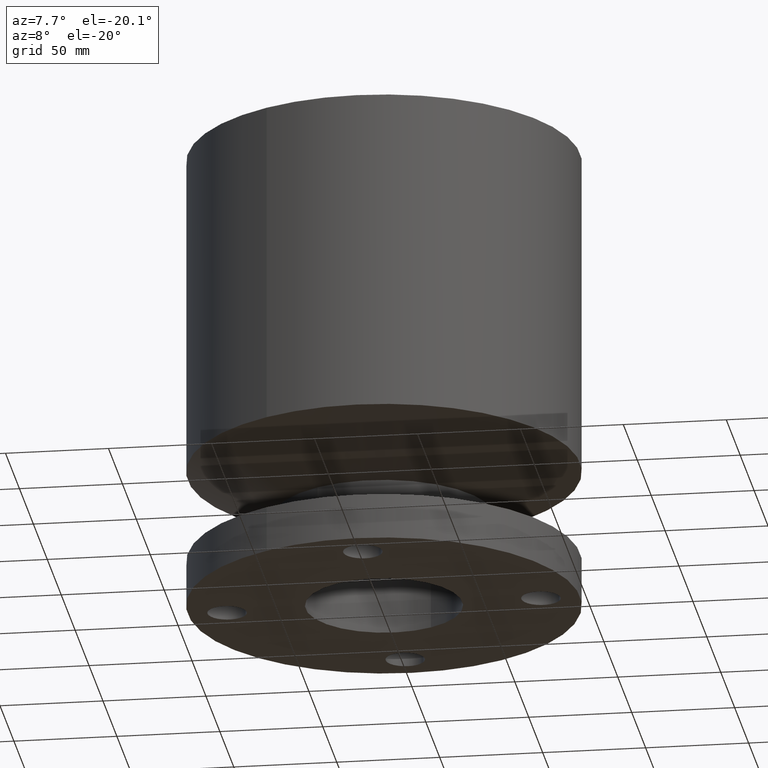
[diagram: clean part render]
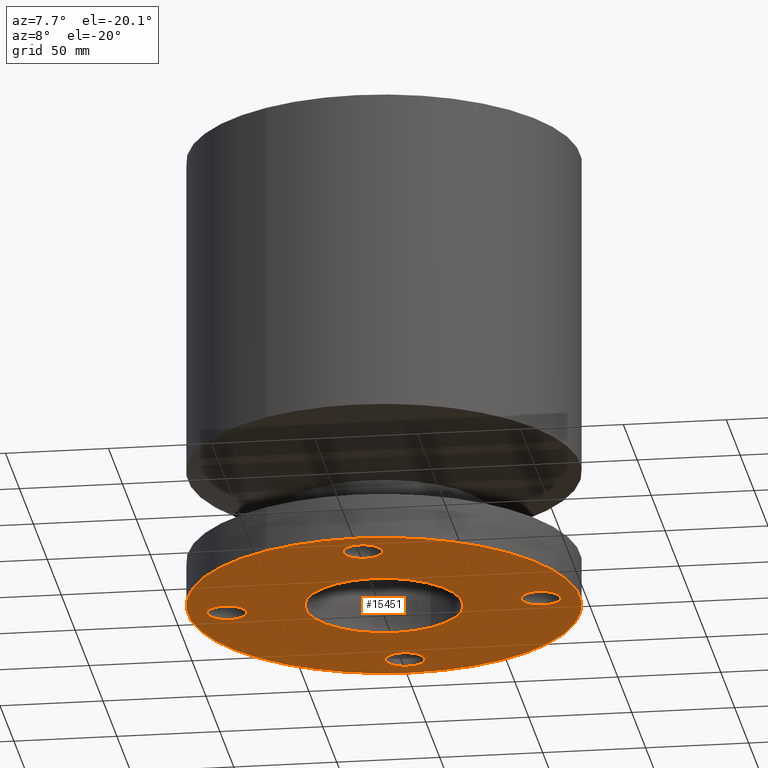
[diagram: same view with one face highlighted and labeled with its STEP entity id]
A machine part, auxiliary view. The second image highlights one B-rep face of the part: STEP entity #15451.
In plain terms, the highlighted planar face has unit normal (0, 0, 1).
Its self-contained STEP definition (entity closure, byte-faithful):
#51=AXIS2_PLACEMENT_3D('Circle Axis2P3D',#49,#50,$) ;
#200=AXIS2_PLACEMENT_3D('Circle Axis2P3D',#198,#199,$) ;
#217=AXIS2_PLACEMENT_3D('Circle Axis2P3D',#215,#216,$) ;
#243=AXIS2_PLACEMENT_3D('Circle Axis2P3D',#241,#242,$) ;
#310=AXIS2_PLACEMENT_3D('Circle Axis2P3D',#308,#309,$) ;
#329=AXIS2_PLACEMENT_3D('Circle Axis2P3D',#327,#328,$) ;
#353=AXIS2_PLACEMENT_3D('Circle Axis2P3D',#351,#352,$) ;
#372=AXIS2_PLACEMENT_3D('Circle Axis2P3D',#370,#371,$) ;
#396=AXIS2_PLACEMENT_3D('Circle Axis2P3D',#394,#395,$) ;
#415=AXIS2_PLACEMENT_3D('Circle Axis2P3D',#413,#414,$) ;
#15386=AXIS2_PLACEMENT_3D('Circle Axis2P3D',#15384,#15385,$) ;
#15412=AXIS2_PLACEMENT_3D('Circle Axis2P3D',#15410,#15411,$) ;
#15425=AXIS2_PLACEMENT_3D('Plane Axis2P3D',#15422,#15423,#15424) ;
#46=CARTESIAN_POINT('Vertex',(3.32909346072,0.179784576977,2.2401153548E-016)) ;
#49=CARTESIAN_POINT('Axis2P3D Location',(3.00000000001,0.,0.)) ;
#53=CARTESIAN_POINT('Vertex',(2.6709065393,-0.179784576977,2.2401153548E-016)) ;
#198=CARTESIAN_POINT('Axis2P3D Location',(3.00000000001,0.,0.)) ;
#215=CARTESIAN_POINT('Axis2P3D Location',(0.,0.,5.59482469102E-016)) ;
#219=CARTESIAN_POINT('Vertex',(-1.79784576977,-3.2909346071,1.1189649382E-015)) ;
#221=CARTESIAN_POINT('Vertex',(1.79784576977,3.2909346071,1.1189649382E-015)) ;
#241=CARTESIAN_POINT('Axis2P3D Location',(0.,0.,5.59482469102E-016)) ;
#305=CARTESIAN_POINT('Vertex',(0.179784576977,-3.32909346072,2.2401153548E-016)) ;
#308=CARTESIAN_POINT('Axis2P3D Location',(-3.7578544923E-016,-3.00000000001,0.)) ;
#312=CARTESIAN_POINT('Vertex',(-0.179784576977,-2.6709065393,2.2401153548E-016)) ;
#327=CARTESIAN_POINT('Axis2P3D Location',(-3.7578544923E-016,-3.00000000001,0.)) ;
#348=CARTESIAN_POINT('Vertex',(-3.32909346072,-0.179784576977,2.2401153548E-016)) ;
#351=CARTESIAN_POINT('Axis2P3D Location',(-3.00000000001,-3.67394039746E-016,0.)) ;
#355=CARTESIAN_POINT('Vertex',(-2.6709065393,0.179784576977,2.2401153548E-016)) ;
#370=CARTESIAN_POINT('Axis2P3D Location',(-3.00000000001,-3.67394039746E-016,0.)) ;
#391=CARTESIAN_POINT('Vertex',(-0.179784576977,3.32909346072,2.2401153548E-016)) ;
#394=CARTESIAN_POINT('Axis2P3D Location',(-5.51091059619E-016,3.00000000001,0.)) ;
#398=CARTESIAN_POINT('Vertex',(0.179784576977,2.6709065393,2.2401153548E-016)) ;
#413=CARTESIAN_POINT('Axis2P3D Location',(-5.51091059619E-016,3.00000000001,0.)) ;
#15384=CARTESIAN_POINT('Axis2P3D Location',(0.,0.,0.)) ;
#15388=CARTESIAN_POINT('Vertex',(-0.719138307909,-1.31637384284,0.)) ;
#15390=CARTESIAN_POINT('Vertex',(0.719138307909,1.31637384284,0.)) ;
#15410=CARTESIAN_POINT('Axis2P3D Location',(0.,0.,0.)) ;
#15422=CARTESIAN_POINT('Axis2P3D Location',(0.,0.,0.)) ;
#50=DIRECTION('Axis2P3D Direction',(0.,-0.,0.0393700787402)) ;
#199=DIRECTION('Axis2P3D Direction',(0.,-0.,0.0393700787402)) ;
#216=DIRECTION('Axis2P3D Direction',(0.,0.,-0.0393700787402)) ;
#242=DIRECTION('Axis2P3D Direction',(0.,0.,-0.0393700787402)) ;
#309=DIRECTION('Axis2P3D Direction',(-0.,0.,0.0393700787402)) ;
#328=DIRECTION('Axis2P3D Direction',(-0.,0.,0.0393700787402)) ;
#352=DIRECTION('Axis2P3D Direction',(0.,0.,0.0393700787402)) ;
#371=DIRECTION('Axis2P3D Direction',(0.,0.,0.0393700787402)) ;
#395=DIRECTION('Axis2P3D Direction',(0.,0.,0.0393700787402)) ;
#414=DIRECTION('Axis2P3D Direction',(0.,0.,0.0393700787402)) ;
#15385=DIRECTION('Axis2P3D Direction',(0.,0.,-0.0393700787402)) ;
#15411=DIRECTION('Axis2P3D Direction',(0.,0.,-0.0393700787402)) ;
#15423=DIRECTION('Axis2P3D Direction',(0.,0.,0.0393700787402)) ;
#15424=DIRECTION('Axis2P3D XDirection',(0.0393700787402,0.,0.)) ;
#15428=ORIENTED_EDGE('',*,*,#245,.T.) ;
#15429=ORIENTED_EDGE('',*,*,#223,.T.) ;
#15432=ORIENTED_EDGE('',*,*,#400,.F.) ;
#15433=ORIENTED_EDGE('',*,*,#417,.F.) ;
#15436=ORIENTED_EDGE('',*,*,#357,.F.) ;
#15437=ORIENTED_EDGE('',*,*,#374,.F.) ;
#15440=ORIENTED_EDGE('',*,*,#314,.F.) ;
#15441=ORIENTED_EDGE('',*,*,#331,.F.) ;
#15444=ORIENTED_EDGE('',*,*,#202,.F.) ;
#15445=ORIENTED_EDGE('',*,*,#55,.F.) ;
#15448=ORIENTED_EDGE('',*,*,#15414,.T.) ;
#15449=ORIENTED_EDGE('',*,*,#15392,.T.) ;
#15434=FACE_BOUND('',#15431,.T.) ;
#15438=FACE_BOUND('',#15435,.T.) ;
#15442=FACE_BOUND('',#15439,.T.) ;
#15446=FACE_BOUND('',#15443,.T.) ;
#15450=FACE_BOUND('',#15447,.T.) ;
#15451=ADVANCED_FACE('PartBody',(#15430,#15434,#15438,#15442,#15446,#15450),#15426,.F.) ;
#52=CIRCLE('generated circle',#51,0.375000000002) ;
#201=CIRCLE('generated circle',#200,0.375000000002) ;
#218=CIRCLE('generated circle',#217,3.75000000002) ;
#244=CIRCLE('generated circle',#243,3.75000000002) ;
#311=CIRCLE('generated circle',#310,0.375000000002) ;
#330=CIRCLE('generated circle',#329,0.375000000002) ;
#354=CIRCLE('generated circle',#353,0.375000000001) ;
#373=CIRCLE('generated circle',#372,0.375000000001) ;
#397=CIRCLE('generated circle',#396,0.375000000002) ;
#416=CIRCLE('generated circle',#415,0.375000000002) ;
#15387=CIRCLE('generated circle',#15386,1.50000000001) ;
#15413=CIRCLE('generated circle',#15412,1.50000000001) ;
#55=EDGE_CURVE('',#47,#54,#52,.F.) ;
#202=EDGE_CURVE('',#54,#47,#201,.F.) ;
#223=EDGE_CURVE('',#220,#222,#218,.T.) ;
#245=EDGE_CURVE('',#222,#220,#244,.T.) ;
#314=EDGE_CURVE('',#306,#313,#311,.F.) ;
#331=EDGE_CURVE('',#313,#306,#330,.F.) ;
#357=EDGE_CURVE('',#349,#356,#354,.F.) ;
#374=EDGE_CURVE('',#356,#349,#373,.F.) ;
#400=EDGE_CURVE('',#392,#399,#397,.F.) ;
#417=EDGE_CURVE('',#399,#392,#416,.F.) ;
#15392=EDGE_CURVE('',#15389,#15391,#15387,.F.) ;
#15414=EDGE_CURVE('',#15391,#15389,#15413,.F.) ;
#15427=EDGE_LOOP('',(#15428,#15429)) ;
#15431=EDGE_LOOP('',(#15432,#15433)) ;
#15435=EDGE_LOOP('',(#15436,#15437)) ;
#15439=EDGE_LOOP('',(#15440,#15441)) ;
#15443=EDGE_LOOP('',(#15444,#15445)) ;
#15447=EDGE_LOOP('',(#15448,#15449)) ;
#15430=FACE_OUTER_BOUND('',#15427,.T.) ;
#15426=PLANE('',#15425) ;
#47=VERTEX_POINT('',#46) ;
#54=VERTEX_POINT('',#53) ;
#220=VERTEX_POINT('',#219) ;
#222=VERTEX_POINT('',#221) ;
#306=VERTEX_POINT('',#305) ;
#313=VERTEX_POINT('',#312) ;
#349=VERTEX_POINT('',#348) ;
#356=VERTEX_POINT('',#355) ;
#392=VERTEX_POINT('',#391) ;
#399=VERTEX_POINT('',#398) ;
#15389=VERTEX_POINT('',#15388) ;
#15391=VERTEX_POINT('',#15390) ;